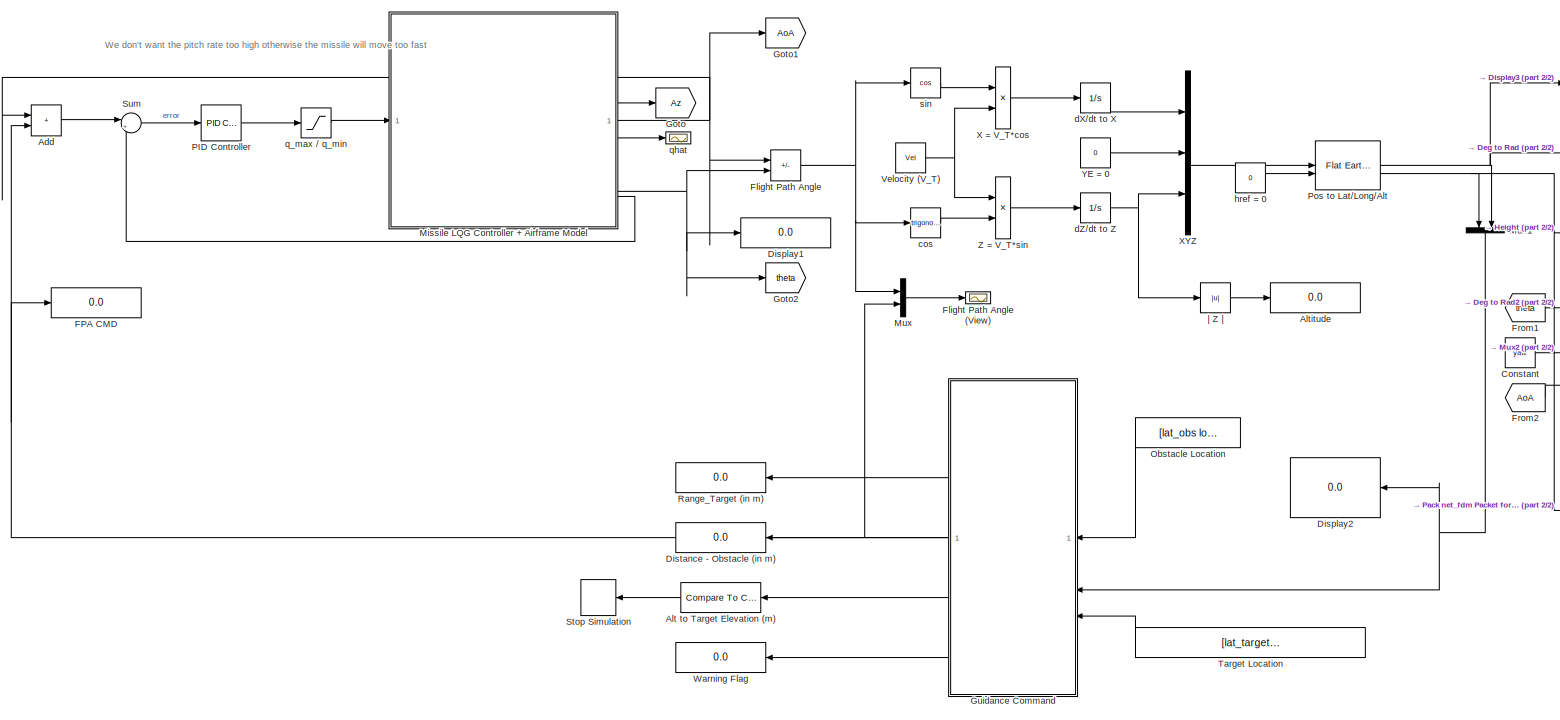
[diagram: root canvas - part 1/2, center side, full height]
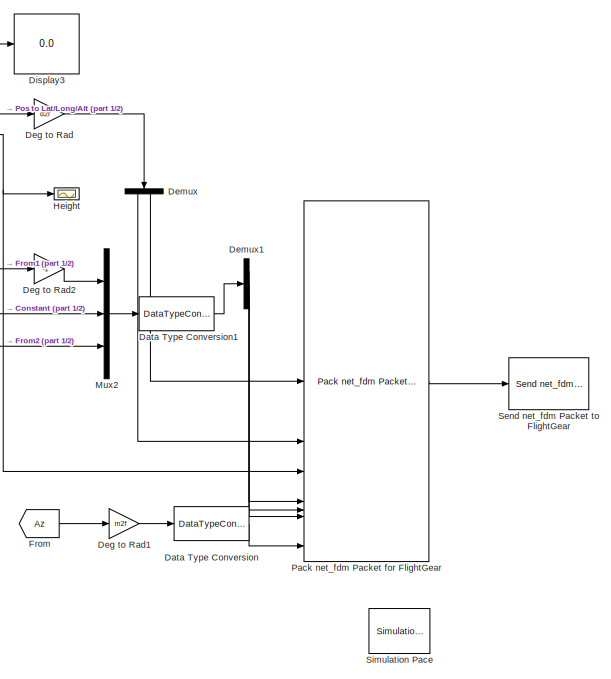
[diagram: root canvas - part 2/2, right side, full height]
MODEL slx_e688c3c32b5e
KIND model
CONFIG AbsTol = auto
CONFIG EnableMultiTasking = off
CONFIG FixedStep = auto
CONFIG MaxStep = auto
CONFIG MinStep = auto
CONFIG RelTol = 1e-3
CONFIG SampleTimeConstraint = Unconstrained
CONFIG SolverName = VariableStepAuto
CONFIG StartTime = 0.0
CONFIG StopTime = 80
BLOCK [Sum] Add
  IconShape = rectangular
BLOCK [Reference] Alt to Target Elevation (m)  REF=simulink/Logic and Bit
Operations/Compare
To Constant
  NameLocation = top
  SourceBlock = simulink/Logic and Bit\nOperations/Compare\nTo Constant
  SourceType = Compare To Constant
BLOCK [Display] Altitude
  Decimation = 1
  Format = long
BLOCK [Constant] Constant
  Value = yaw
BLOCK [DataTypeConversion] Data Type Conversion
  OutDataTypeStr = single
  RndMeth = Floor
  SaturateOnIntegerOverflow = off
BLOCK [DataTypeConversion] Data Type Conversion1
  OutDataTypeStr = single
  RndMeth = Floor
  SaturateOnIntegerOverflow = off
BLOCK [Gain] Deg to Rad
  Gain = d2r
BLOCK [Gain] Deg to Rad1
  Gain = m2f
BLOCK [Gain] Deg to Rad2
  Gain = -1
BLOCK [Demux] Demux
  NameLocation = left
  Outputs = 2
BLOCK [Demux] Demux1
  Outputs = 3
BLOCK [Display] Display1
  Decimation = 1
  Format = long
BLOCK [Display] Display2
  Decimation = 1
  Format = long
  NameLocation = top
BLOCK [Display] Display3
  Decimation = 1
  Format = long
BLOCK [Display] Distance - Obstacle (in m)
  Decimation = 1
  NameLocation = top
BLOCK [Display] FPA CMD
  Decimation = 1
BLOCK [Sum] Flight Path Angle
  IconShape = rectangular
  Inputs = -+
BLOCK [Scope] Flight Path Angle (View)
  Floating = off
  NumInputPorts = 1
  ScopeSpecificationString = Simulink.scopes.TimeScopeBlockCfg('CurrentConfiguration', extmgr.ConfigurationSet(extmgr.Configuration('Core','General UI',true,'FigureColor',[0.313725490196078 0.313725490196078 0.313725490196078]),extmgr.Configuration('Core','Source UI',true),extmgr.Configuration('Sources','WiredSimulink',true,'DataLoggingVariableName','ScopeData1','DataLoggingSaveFormat','Array','DataLoggingDecimation','1','Dat...<+2941ch>
BLOCK [From] From
  GotoTag = Az
BLOCK [From] From1
  GotoTag = theta
BLOCK [From] From2
  GotoTag = AoA
BLOCK [Goto] Goto
  GotoTag = Az
BLOCK [Goto] Goto1
  GotoTag = AoA
BLOCK [Goto] Goto2
  GotoTag = theta
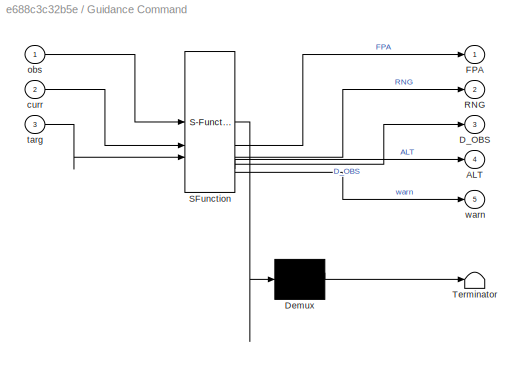
BLOCK [SubSystem] Guidance Command
  ErrorFcn = Stateflow.Translate.translate
  PermitHierarchicalResolution = ExplicitOnly
  SFBlockType = MATLAB Function
  TreatAsAtomicUnit = on
BLOCK [Demux] Guidance Command/ Demux 
  Outputs = 1
BLOCK [S-Function] Guidance Command/ SFunction 
  EnableBusSupport = on
  FunctionName = sf_sfun
  PortCounts = [3 6]
  SFcnIsStateOwnerBlock = off
  SFunctionDeploymentMode = off
  Tag = Stateflow S-Function 2
BLOCK [Terminator] Guidance Command/ Terminator 
BLOCK [Outport] Guidance Command/ALT
  Port = 4
BLOCK [Outport] Guidance Command/D_OBS
  Port = 3
BLOCK [Outport] Guidance Command/FPA
BLOCK [Outport] Guidance Command/RNG
  Port = 2
BLOCK [Inport] Guidance Command/curr
  Port = 2
BLOCK [Inport] Guidance Command/obs
BLOCK [Inport] Guidance Command/targ
  Port = 3
BLOCK [Outport] Guidance Command/warn
  Port = 5
BLOCK [Scope] Height
  Floating = off
  NumInputPorts = 1
  ScopeSpecificationString = Simulink.scopes.TimeScopeBlockCfg('CurrentConfiguration', extmgr.ConfigurationSet(extmgr.Configuration('Core','General UI',true,'FigureColor',[0.313725490196078 0.313725490196078 0.313725490196078]),extmgr.Configuration('Core','Source UI',true),extmgr.Configuration('Sources','WiredSimulink',true,'DataLoggingVariableName','ScopeData3','DataLoggingSaveFormat','Array','DataLoggingDecimation','1','Dat...<+2944ch>
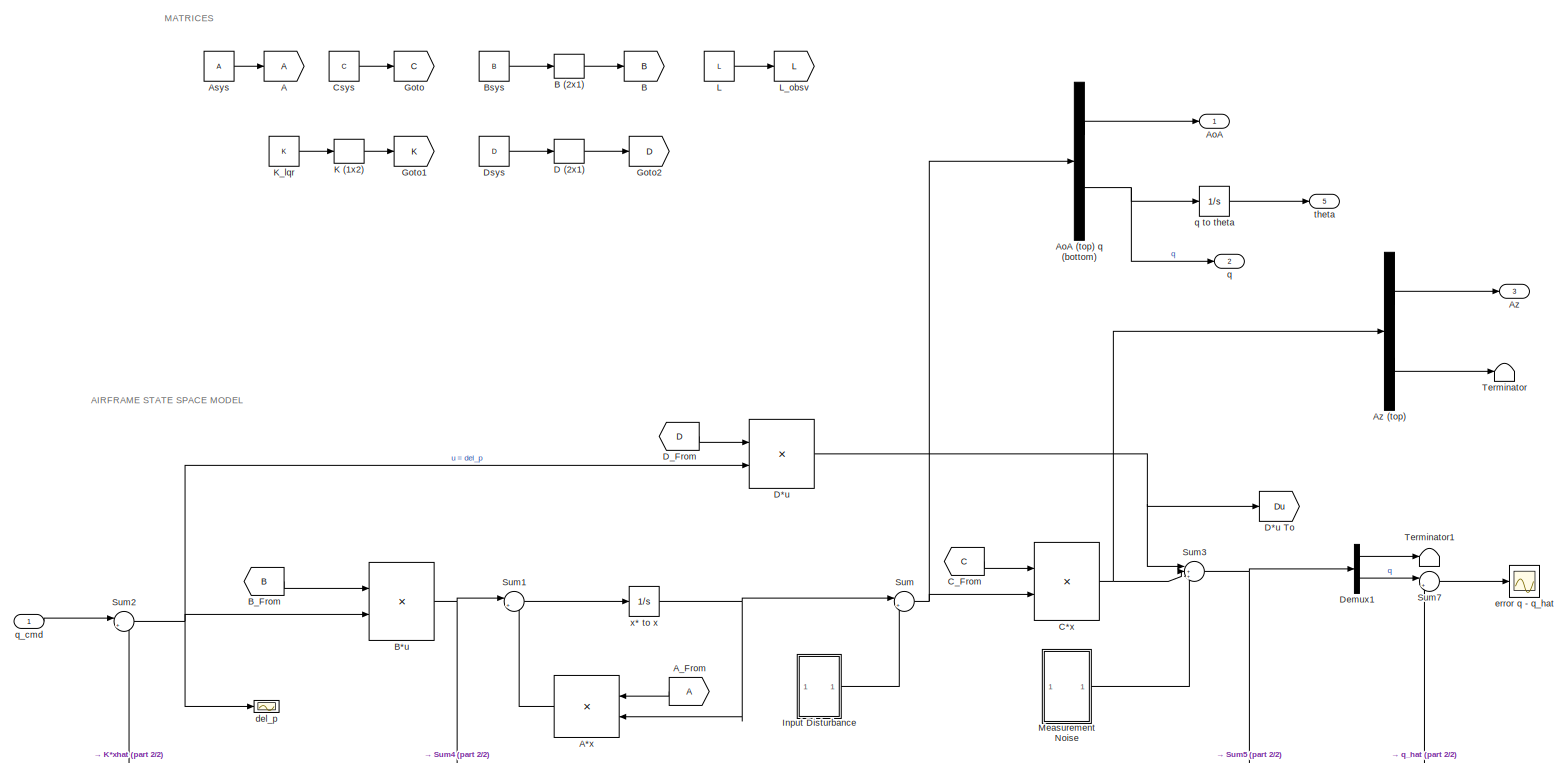
[diagram: Missile LQG Controller + Airframe Model - part 1/2, full width, top band]
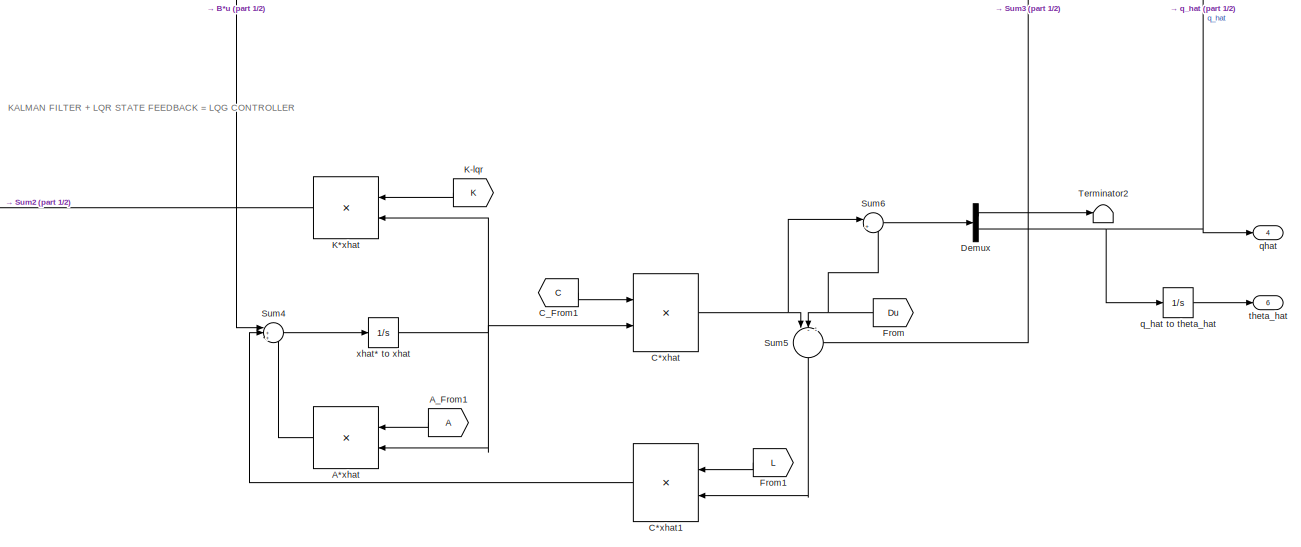
[diagram: Missile LQG Controller + Airframe Model - part 2/2, full width, bottom band]
BLOCK [SubSystem] Missile LQG Controller + Airframe Model
BLOCK [Goto] Missile LQG Controller + Airframe Model/A
BLOCK [Product] Missile LQG Controller + Airframe Model/A*x
  Multiplication = Matrix(*)
  NameLocation = top
BLOCK [Product] Missile LQG Controller + Airframe Model/A*xhat
  Multiplication = Matrix(*)
  NameLocation = top
BLOCK [From] Missile LQG Controller + Airframe Model/A_From
  NameLocation = top
BLOCK [From] Missile LQG Controller + Airframe Model/A_From1
  NameLocation = top
BLOCK [Outport] Missile LQG Controller + Airframe Model/AoA
BLOCK [Demux] Missile LQG Controller + Airframe Model/AoA (top) q (bottom)
  Outputs = 2
BLOCK [Constant] Missile LQG Controller + Airframe Model/Asys
  Value = A
BLOCK [Outport] Missile LQG Controller + Airframe Model/Az
  Port = 3
BLOCK [Demux] Missile LQG Controller + Airframe Model/Az (top)
  Outputs = 2
BLOCK [Goto] Missile LQG Controller + Airframe Model/B
  GotoTag = B
BLOCK [Reshape] Missile LQG Controller + Airframe Model/B (2x1)
  OutputDimensionality = Customize
  OutputDimensions = [2,1]
BLOCK [Product] Missile LQG Controller + Airframe Model/B*u
  Multiplication = Matrix(*)
BLOCK [From] Missile LQG Controller + Airframe Model/B_From
  GotoTag = B
BLOCK [Constant] Missile LQG Controller + Airframe Model/Bsys
  Value = B
BLOCK [Product] Missile LQG Controller + Airframe Model/C*x
  Multiplication = Matrix(*)
BLOCK [Product] Missile LQG Controller + Airframe Model/C*xhat
  Multiplication = Matrix(*)
BLOCK [Product] Missile LQG Controller + Airframe Model/C*xhat1
  Multiplication = Matrix(*)
  NameLocation = top
BLOCK [From] Missile LQG Controller + Airframe Model/C_From
  GotoTag = C
BLOCK [From] Missile LQG Controller + Airframe Model/C_From1
  GotoTag = C
BLOCK [Constant] Missile LQG Controller + Airframe Model/Csys
  Value = C
BLOCK [Reshape] Missile LQG Controller + Airframe Model/D (2x1)
  OutputDimensionality = Customize
  OutputDimensions = [2,1]
BLOCK [Product] Missile LQG Controller + Airframe Model/D*u
  Multiplication = Matrix(*)
BLOCK [Goto] Missile LQG Controller + Airframe Model/D*u To
  GotoTag = Du
BLOCK [From] Missile LQG Controller + Airframe Model/D_From
  GotoTag = D
BLOCK [Demux] Missile LQG Controller + Airframe Model/Demux
  Outputs = 2
BLOCK [Demux] Missile LQG Controller + Airframe Model/Demux1
  Outputs = 2
BLOCK [Constant] Missile LQG Controller + Airframe Model/Dsys
  Value = D
BLOCK [From] Missile LQG Controller + Airframe Model/From
  GotoTag = Du
  NameLocation = top
BLOCK [From] Missile LQG Controller + Airframe Model/From1
  GotoTag = L
  NameLocation = top
BLOCK [Goto] Missile LQG Controller + Airframe Model/Goto
  GotoTag = C
BLOCK [Goto] Missile LQG Controller + Airframe Model/Goto1
  GotoTag = K
BLOCK [Goto] Missile LQG Controller + Airframe Model/Goto2
  GotoTag = D
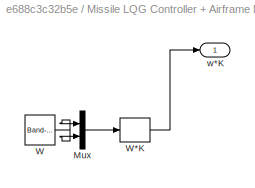
BLOCK [SubSystem] Missile LQG Controller + Airframe Model/Input Disturbance
BLOCK [Mux] Missile LQG Controller + Airframe Model/Input Disturbance/Mux
  DisplayOption = bar
  Inputs = 2
BLOCK [Reference] Missile LQG Controller + Airframe Model/Input Disturbance/W  REF=simulink/Sources/Band-Limited
White Noise
  SourceBlock = simulink/Sources/Band-Limited\nWhite Noise
  SourceType = Band-Limited White Noise.
BLOCK [Reshape] Missile LQG Controller + Airframe Model/Input Disturbance/W*K
  OutputDimensionality = Customize
  OutputDimensions = [2,1]
BLOCK [Outport] Missile LQG Controller + Airframe Model/Input Disturbance/w*K
BLOCK [Reshape] Missile LQG Controller + Airframe Model/K (1x2)
  OutputDimensionality = Customize
  OutputDimensions = [1,2]
BLOCK [Product] Missile LQG Controller + Airframe Model/K*xhat
  Multiplication = Matrix(*)
  NameLocation = top
BLOCK [From] Missile LQG Controller + Airframe Model/K-lqr
  GotoTag = K
  NameLocation = top
BLOCK [Constant] Missile LQG Controller + Airframe Model/K_lqr
  Value = K
BLOCK [Constant] Missile LQG Controller + Airframe Model/L
  Value = L
BLOCK [Goto] Missile LQG Controller + Airframe Model/L_obsv
  GotoTag = L
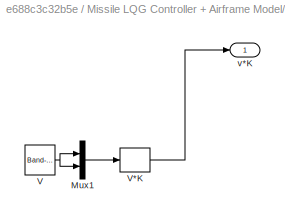
BLOCK [SubSystem] Missile LQG Controller + Airframe Model/Measurement Noise
BLOCK [Mux] Missile LQG Controller + Airframe Model/Measurement Noise/Mux1
  DisplayOption = bar
  Inputs = 2
BLOCK [Reference] Missile LQG Controller + Airframe Model/Measurement Noise/V  REF=simulink/Sources/Band-Limited
White Noise
  SourceBlock = simulink/Sources/Band-Limited\nWhite Noise
  SourceType = Band-Limited White Noise.
BLOCK [Reshape] Missile LQG Controller + Airframe Model/Measurement Noise/V*K
  OutputDimensionality = Customize
  OutputDimensions = [2,1]
BLOCK [Outport] Missile LQG Controller + Airframe Model/Measurement Noise/v*K
BLOCK [Sum] Missile LQG Controller + Airframe Model/Sum
  Inputs = |++
BLOCK [Sum] Missile LQG Controller + Airframe Model/Sum1
  Inputs = |++
BLOCK [Sum] Missile LQG Controller + Airframe Model/Sum2
  Inputs = |+-
BLOCK [Sum] Missile LQG Controller + Airframe Model/Sum3
  Inputs = |+++
BLOCK [Sum] Missile LQG Controller + Airframe Model/Sum4
  Inputs = |+++
BLOCK [Sum] Missile LQG Controller + Airframe Model/Sum5
  Inputs = |--+
  NameLocation = left
BLOCK [Sum] Missile LQG Controller + Airframe Model/Sum6
  Inputs = |++
BLOCK [Sum] Missile LQG Controller + Airframe Model/Sum7
  Inputs = |+-
BLOCK [Terminator] Missile LQG Controller + Airframe Model/Terminator
BLOCK [Terminator] Missile LQG Controller + Airframe Model/Terminator1
BLOCK [Terminator] Missile LQG Controller + Airframe Model/Terminator2
BLOCK [Scope] Missile LQG Controller + Airframe Model/del_p
  Floating = off
  NumInputPorts = 1
  ScopeSpecificationString = Simulink.scopes.TimeScopeBlockCfg('CurrentConfiguration', extmgr.ConfigurationSet(extmgr.Configuration('Core','General UI',true,'FigureColor',[0.313725490196078 0.313725490196078 0.313725490196078]),extmgr.Configuration('Core','Source UI',true),extmgr.Configuration('Sources','WiredSimulink',true,'DataLoggingVariableName','ScopeData2','DataLoggingSaveFormat','Array','DataLoggingDecimation','1','Dat...<+2910ch>
BLOCK [Scope] Missile LQG Controller + Airframe Model/error q - q_hat
  Floating = off
  NumInputPorts = 1
  ScopeSpecificationString = Simulink.scopes.TimeScopeBlockCfg('CurrentConfiguration', extmgr.ConfigurationSet(extmgr.Configuration('Core','General UI',true),extmgr.Configuration('Core','Source UI',true),extmgr.Configuration('Sources','WiredSimulink',true),extmgr.Configuration('Visuals','Time Domain',true,'SerializedDisplays',{struct('MinYLimReal','-0.03058','MaxYLimReal','0.02998','YLabelReal','','MinYLimMag','0.00000','MaxY...<+1413ch>
BLOCK [Outport] Missile LQG Controller + Airframe Model/q
  Port = 2
BLOCK [Integrator] Missile LQG Controller + Airframe Model/q to theta
BLOCK [Inport] Missile LQG Controller + Airframe Model/q_cmd
BLOCK [Integrator] Missile LQG Controller + Airframe Model/q_hat to theta_hat
BLOCK [Outport] Missile LQG Controller + Airframe Model/qhat
  Port = 4
BLOCK [Outport] Missile LQG Controller + Airframe Model/theta
  Port = 5
BLOCK [Outport] Missile LQG Controller + Airframe Model/theta_hat
  Port = 6
BLOCK [Integrator] Missile LQG Controller + Airframe Model/x* to x
BLOCK [Integrator] Missile LQG Controller + Airframe Model/xhat* to xhat
BLOCK [Mux] Mux
  DisplayOption = bar
  Inputs = 2
BLOCK [Mux] Mux1
  DisplayOption = bar
  Inputs = 2
  NameLocation = left
BLOCK [Mux] Mux2
  DisplayOption = bar
  Inputs = 3
BLOCK [Constant] Obstacle Location
  Value = [lat_obs lon_obs]
BLOCK [Reference] PID Controller  REF=slpidlib/PID Controller
  LibrarySourceBlock = simulink/Continuous/PID Controller
  SourceBlock = slpidlib/PID Controller
  SourceType = PID 1dof
BLOCK [Reference] Pack net_fdm Packet for FlightGear  REF=aerolibfltsims/Pack
net_fdm Packet
for FlightGear
  SourceBlock = aerolibfltsims/Pack\nnet_fdm Packet\nfor FlightGear
  SourceType = FlightGearPackNetFdm
BLOCK [Reference] Pos to Lat//Long//Alt  REF=aerolibtransform2/Flat Earth to LLA
  SourceBlock = aerolibtransform2/Flat Earth to LLA
  SourceType = Flat Earth to LLA
BLOCK [Display] Range_Target (in m)
  Decimation = 1
  NameLocation = top
BLOCK [Reference] Send net_fdm Packet to FlightGear  REF=aerolibfltsims/Send
net_fdm Packet
to FlightGear
  SourceBlock = aerolibfltsims/Send\nnet_fdm Packet\nto FlightGear
  SourceType = FlightGearSendNetFdm
BLOCK [Reference] Simulation Pace  REF=aerolibanimutils/Simulation Pace
  AttributesFormatString = %<SleepMode>\n%<SimulationPace> sec/sec
  SourceBlock = aerolibanimutils/Simulation Pace
  SourceType = Simulation Pace
BLOCK [Stop] Stop Simulation
  NameLocation = top
BLOCK [Sum] Sum
  Inputs = |+-
BLOCK [Constant] Target Location
  Value = [lat_target lon_target elev_target]
BLOCK [Constant] Velocity (V_T)
  Value = Vel
BLOCK [Display] Warning Flag
  Decimation = 1
  NameLocation = top
BLOCK [Product] X = V_T*cos
BLOCK [Mux] XYZ
  DisplayOption = bar
  Inputs = 3
BLOCK [Constant] YE = 0
  Value = 0
BLOCK [Product] Z = V_T*sin
BLOCK [Trigonometry] cos
BLOCK [Integrator] dX//dt to X
BLOCK [Integrator] dZ//dt to Z
  InitialCondition = -elev_init
BLOCK [Constant] href = 0
  Value = 0
BLOCK [Saturate] q_max // q_min
BLOCK [Scope] qhat
  Floating = off
  NumInputPorts = 1
  ScopeSpecificationString = Simulink.scopes.TimeScopeBlockCfg('CurrentConfiguration', extmgr.ConfigurationSet(extmgr.Configuration('Core','General UI',true,'FigureColor',[0.313725490196078 0.313725490196078 0.313725490196078]),extmgr.Configuration('Core','Source UI',true),extmgr.Configuration('Sources','WiredSimulink',true,'DataLoggingVariableName','ScopeData4','DataLoggingSaveFormat','Array','DataLoggingDecimation','1','Dat...<+2944ch>
BLOCK [Trigonometry] sin
  Operator = cos
BLOCK [Abs] | Z |
  SaturateOnIntegerOverflow = off
ANNOTATION (root): We don't want the pitch rate too high otherwise the missile will move too fast
ANNOTATION Missile LQG Controller + Airframe Model: AIRFRAME STATE SPACE MODEL
ANNOTATION Missile LQG Controller + Airframe Model: KALMAN FILTER + LQR STATE FEEDBACK = LQG CONTROLLER
ANNOTATION Missile LQG Controller + Airframe Model: MATRICES
LINE Add:1 -> Sum:1
LINE Alt to Target Elevation (m):1 -> Stop Simulation:1
LINE Constant:1 -> Mux2:2
LINE Data Type Conversion1:1 -> Demux1:1
LINE Data Type Conversion:1 -> Pack net_fdm Packet for FlightGear:22
LINE Deg to Rad1:1 -> Data Type Conversion:1
LINE Deg to Rad2:1 -> Mux2:1
LINE Deg to Rad:1 -> Demux:1
LINE Demux1:1 -> Pack net_fdm Packet for FlightGear:5
LINE Demux1:2 -> Pack net_fdm Packet for FlightGear:6
LINE Demux1:3 -> Pack net_fdm Packet for FlightGear:7
LINE Demux:1 -> Pack net_fdm Packet for FlightGear:2
LINE Demux:2 -> Pack net_fdm Packet for FlightGear:1
NET Flight Path Angle:1 -> Mux:1, cos:1, sin:1
LINE From1:1 -> Deg to Rad2:1
LINE From2:1 -> Mux2:3
LINE From:1 -> Deg to Rad1:1
NET Guidance Command:1 -> Add:2, FPA CMD:1, Mux:2
LINE Guidance Command:2 -> Range_Target (in m):1
LINE Guidance Command:3 -> Distance - Obstacle (in m):1
LINE Guidance Command:4 -> Alt to Target Elevation (m):1
LINE Guidance Command:5 -> Warning Flag:1
LINE Missile LQG Controller + Airframe Model/A*x:1 -> Missile LQG Controller + Airframe Model/Sum1:2
LINE Missile LQG Controller + Airframe Model/A*xhat:1 -> Missile LQG Controller + Airframe Model/Sum4:3
LINE Missile LQG Controller + Airframe Model/A_From1:1 -> Missile LQG Controller + Airframe Model/A*xhat:1
LINE Missile LQG Controller + Airframe Model/A_From:1 -> Missile LQG Controller + Airframe Model/A*x:1
LINE Missile LQG Controller + Airframe Model/AoA (top) q (bottom):1 -> Missile LQG Controller + Airframe Model/AoA:1
NET Missile LQG Controller + Airframe Model/AoA (top) q (bottom):2 -> Missile LQG Controller + Airframe Model/q to theta:1, Missile LQG Controller + Airframe Model/q:1
LINE Missile LQG Controller + Airframe Model/Asys:1 -> Missile LQG Controller + Airframe Model/A:1
LINE Missile LQG Controller + Airframe Model/Az (top):1 -> Missile LQG Controller + Airframe Model/Az:1
LINE Missile LQG Controller + Airframe Model/Az (top):2 -> Missile LQG Controller + Airframe Model/Terminator:1
LINE Missile LQG Controller + Airframe Model/B (2x1):1 -> Missile LQG Controller + Airframe Model/B:1
NET Missile LQG Controller + Airframe Model/B*u:1 -> Missile LQG Controller + Airframe Model/Sum1:1, Missile LQG Controller + Airframe Model/Sum4:1
LINE Missile LQG Controller + Airframe Model/B_From:1 -> Missile LQG Controller + Airframe Model/B*u:1
LINE Missile LQG Controller + Airframe Model/Bsys:1 -> Missile LQG Controller + Airframe Model/B (2x1):1
NET Missile LQG Controller + Airframe Model/C*x:1 -> Missile LQG Controller + Airframe Model/Az (top):1, Missile LQG Controller + Airframe Model/Sum3:2
LINE Missile LQG Controller + Airframe Model/C*xhat1:1 -> Missile LQG Controller + Airframe Model/Sum4:2
NET Missile LQG Controller + Airframe Model/C*xhat:1 -> Missile LQG Controller + Airframe Model/Sum5:1, Missile LQG Controller + Airframe Model/Sum6:1
LINE Missile LQG Controller + Airframe Model/C_From1:1 -> Missile LQG Controller + Airframe Model/C*xhat:1
LINE Missile LQG Controller + Airframe Model/C_From:1 -> Missile LQG Controller + Airframe Model/C*x:1
LINE Missile LQG Controller + Airframe Model/Csys:1 -> Missile LQG Controller + Airframe Model/Goto:1
LINE Missile LQG Controller + Airframe Model/D (2x1):1 -> Missile LQG Controller + Airframe Model/Goto2:1
NET Missile LQG Controller + Airframe Model/D*u:1 -> Missile LQG Controller + Airframe Model/D*u To:1, Missile LQG Controller + Airframe Model/Sum3:1
LINE Missile LQG Controller + Airframe Model/D_From:1 -> Missile LQG Controller + Airframe Model/D*u:1
LINE Missile LQG Controller + Airframe Model/Demux1:1 -> Missile LQG Controller + Airframe Model/Terminator1:1
LINE Missile LQG Controller + Airframe Model/Demux1:2 -> Missile LQG Controller + Airframe Model/Sum7:1
LINE Missile LQG Controller + Airframe Model/Demux:1 -> Missile LQG Controller + Airframe Model/Terminator2:1
NET Missile LQG Controller + Airframe Model/Demux:2 -> Missile LQG Controller + Airframe Model/Sum7:2, Missile LQG Controller + Airframe Model/q_hat to theta_hat:1, Missile LQG Controller + Airframe Model/qhat:1
LINE Missile LQG Controller + Airframe Model/Dsys:1 -> Missile LQG Controller + Airframe Model/D (2x1):1
LINE Missile LQG Controller + Airframe Model/From1:1 -> Missile LQG Controller + Airframe Model/C*xhat1:1
NET Missile LQG Controller + Airframe Model/From:1 -> Missile LQG Controller + Airframe Model/Sum5:2, Missile LQG Controller + Airframe Model/Sum6:2
LINE Missile LQG Controller + Airframe Model/Input Disturbance/Mux:1 -> Missile LQG Controller + Airframe Model/Input Disturbance/W*K:1
LINE Missile LQG Controller + Airframe Model/Input Disturbance/W*K:1 -> Missile LQG Controller + Airframe Model/Input Disturbance/w*K:1
NET Missile LQG Controller + Airframe Model/Input Disturbance/W:1 -> Missile LQG Controller + Airframe Model/Input Disturbance/Mux:1, Missile LQG Controller + Airframe Model/Input Disturbance/Mux:2
LINE Missile LQG Controller + Airframe Model/Input Disturbance:1 -> Missile LQG Controller + Airframe Model/Sum:2
LINE Missile LQG Controller + Airframe Model/K (1x2):1 -> Missile LQG Controller + Airframe Model/Goto1:1
LINE Missile LQG Controller + Airframe Model/K*xhat:1 -> Missile LQG Controller + Airframe Model/Sum2:2
LINE Missile LQG Controller + Airframe Model/K-lqr:1 -> Missile LQG Controller + Airframe Model/K*xhat:1
LINE Missile LQG Controller + Airframe Model/K_lqr:1 -> Missile LQG Controller + Airframe Model/K (1x2):1
LINE Missile LQG Controller + Airframe Model/L:1 -> Missile LQG Controller + Airframe Model/L_obsv:1
LINE Missile LQG Controller + Airframe Model/Measurement Noise/Mux1:1 -> Missile LQG Controller + Airframe Model/Measurement Noise/V*K:1
LINE Missile LQG Controller + Airframe Model/Measurement Noise/V*K:1 -> Missile LQG Controller + Airframe Model/Measurement Noise/v*K:1
NET Missile LQG Controller + Airframe Model/Measurement Noise/V:1 -> Missile LQG Controller + Airframe Model/Measurement Noise/Mux1:1, Missile LQG Controller + Airframe Model/Measurement Noise/Mux1:2
LINE Missile LQG Controller + Airframe Model/Measurement Noise:1 -> Missile LQG Controller + Airframe Model/Sum3:3
LINE Missile LQG Controller + Airframe Model/Sum1:1 -> Missile LQG Controller + Airframe Model/x* to x:1
NET Missile LQG Controller + Airframe Model/Sum2:1 -> Missile LQG Controller + Airframe Model/B*u:2, Missile LQG Controller + Airframe Model/D*u:2, Missile LQG Controller + Airframe Model/del_p:1
NET Missile LQG Controller + Airframe Model/Sum3:1 -> Missile LQG Controller + Airframe Model/Demux1:1, Missile LQG Controller + Airframe Model/Sum5:3
LINE Missile LQG Controller + Airframe Model/Sum4:1 -> Missile LQG Controller + Airframe Model/xhat* to xhat:1
LINE Missile LQG Controller + Airframe Model/Sum5:1 -> Missile LQG Controller + Airframe Model/C*xhat1:2
LINE Missile LQG Controller + Airframe Model/Sum6:1 -> Missile LQG Controller + Airframe Model/Demux:1
LINE Missile LQG Controller + Airframe Model/Sum7:1 -> Missile LQG Controller + Airframe Model/error q - q_hat:1
NET Missile LQG Controller + Airframe Model/Sum:1 -> Missile LQG Controller + Airframe Model/AoA (top) q (bottom):1, Missile LQG Controller + Airframe Model/C*x:2
LINE Missile LQG Controller + Airframe Model/q to theta:1 -> Missile LQG Controller + Airframe Model/theta:1
LINE Missile LQG Controller + Airframe Model/q_cmd:1 -> Missile LQG Controller + Airframe Model/Sum2:1
LINE Missile LQG Controller + Airframe Model/q_hat to theta_hat:1 -> Missile LQG Controller + Airframe Model/theta_hat:1
NET Missile LQG Controller + Airframe Model/x* to x:1 -> Missile LQG Controller + Airframe Model/A*x:2, Missile LQG Controller + Airframe Model/Sum:1
NET Missile LQG Controller + Airframe Model/xhat* to xhat:1 -> Missile LQG Controller + Airframe Model/A*xhat:2, Missile LQG Controller + Airframe Model/C*xhat:2, Missile LQG Controller + Airframe Model/K*xhat:2
NET Missile LQG Controller + Airframe Model:1 -> Add:1, Flight Path Angle:1, Goto1:1
LINE Missile LQG Controller + Airframe Model:3 -> Goto:1
LINE Missile LQG Controller + Airframe Model:4 -> qhat:1
NET Missile LQG Controller + Airframe Model:5 -> Display1:1, Flight Path Angle:2, Goto2:1
LINE Missile LQG Controller + Airframe Model:6 -> Sum:2
NET Mux1:1 -> Display2:1, Guidance Command:2
LINE Mux2:1 -> Data Type Conversion1:1
LINE Mux:1 -> Flight Path Angle (View):1
LINE Obstacle Location:1 -> Guidance Command:1
LINE PID Controller:1 -> q_max // q_min:1
LINE Pack net_fdm Packet for FlightGear:1 -> Send net_fdm Packet to FlightGear:1
NET Pos to Lat//Long//Alt:1 -> Deg to Rad:1, Display3:1, Mux1:2
NET Pos to Lat//Long//Alt:2 -> Height:1, Mux1:1, Pack net_fdm Packet for FlightGear:3
LINE Sum:1 -> PID Controller:1
LINE Target Location:1 -> Guidance Command:3
NET Velocity (V_T):1 -> X = V_T*cos:2, Z = V_T*sin:1
LINE X = V_T*cos:1 -> dX//dt to X:1
LINE XYZ:1 -> Pos to Lat//Long//Alt:1
LINE YE = 0:1 -> XYZ:2
LINE Z = V_T*sin:1 -> dZ//dt to Z:1
LINE cos:1 -> Z = V_T*sin:2
LINE dX//dt to X:1 -> XYZ:1
NET dZ//dt to Z:1 -> XYZ:3, | Z |:1
LINE href = 0:1 -> Pos to Lat//Long//Alt:2
LINE q_max // q_min:1 -> Missile LQG Controller + Airframe Model:1
LINE sin:1 -> X = V_T*cos:1
LINE | Z |:1 -> Altitude:1
note: NET lines group one-source signal fan-out (src -> all destinations, sorted); 1:1 wires keep LINE
CHART Guidance Command states=1 transitions=1
  STATE_LABEL 'eML_blk_kernel()'
  STATE_LABEL 'SCRIPT:\nfunction [FPA, RNG, D_OBS, ALT, warn] = fcn(obs, curr, targ)\n\nR = 6371e3;\nd2r = pi/180;\n\n% Obstacle Location\nlat_obs = obs(1);\nlon_obs = obs(2);\n\n% Obstacle Threshold (Zone in m)\nthresh = 2e3;\n\n% Target Location\nlat_targ = targ(1);\nlon_targ = targ(2);\nelev_targ = targ(3);\n\n% Current Location\nlat_curr = curr(2);\nlon_curr = curr(3);\nelev_curr = curr(1);\n\n%% Distance To Target\nl1 = lat_curr*d...<+862ch>'
CHART  states=0 transitions=0
